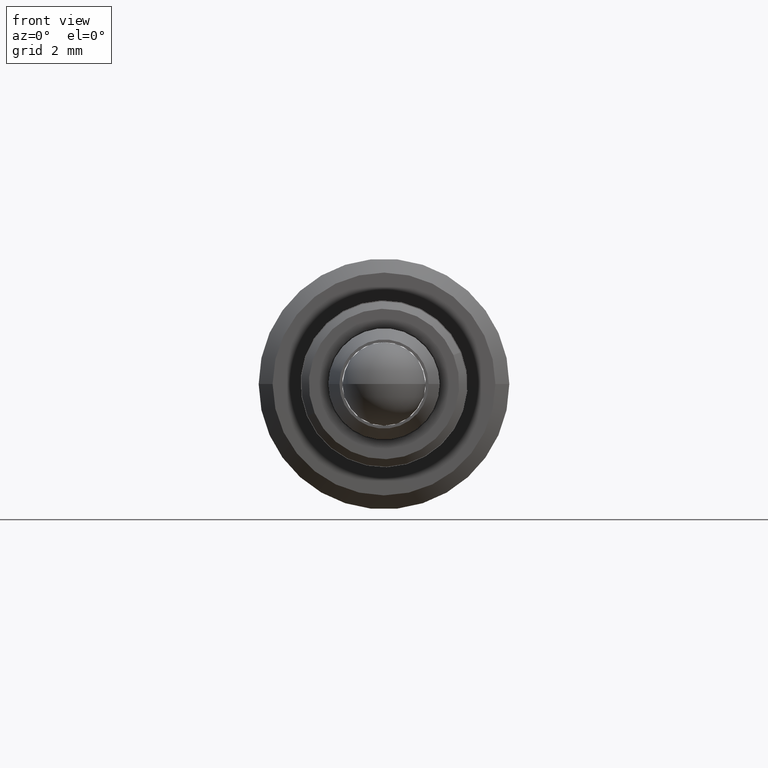
[diagram: clean part render]
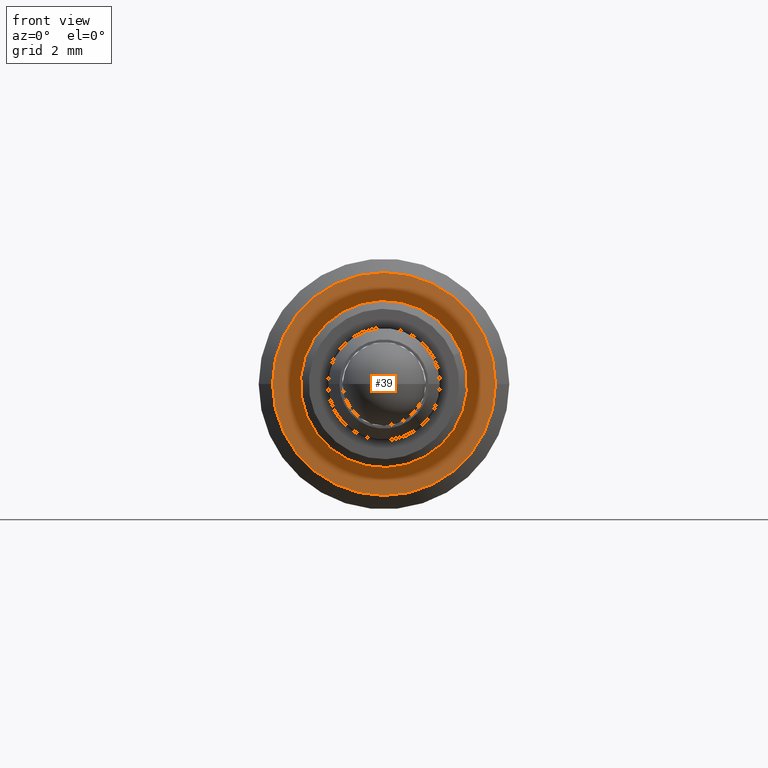
[diagram: same view with one face highlighted and labeled with its STEP entity id]
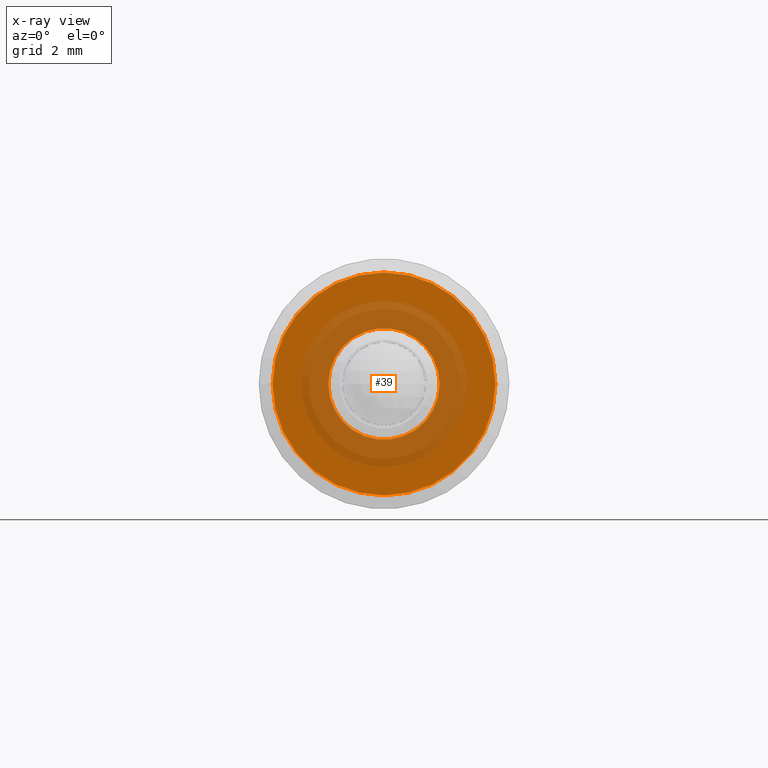
[diagram: x-ray of the same camera — body ghosted, the highlighted face saturated]
A machine part, front view. The second image highlights one B-rep face of the part: STEP entity #39.
The next image is the same camera in x-ray: the body ghosted, the highlighted face saturated — about 40% of this face is hidden behind the body in this view.
In plain terms, the highlighted planar face has unit normal (-0, -1, 0).
Its self-contained STEP definition (entity closure, byte-faithful):
#4 = DIRECTION ( 'NONE',  ( 1.000000000000000000, -1.019221640393047800E-016, 0.0000000000000000000 ) ) ;
#24 = CARTESIAN_POINT ( 'NONE',  ( 4.386313430823045100, 19.63143070247038900, 17.11623035873974200 ) ) ;
#27 = CARTESIAN_POINT ( 'NONE',  ( 12.88631343082304400, 19.63143070247038900, 17.11623035873974200 ) ) ;
#39 = ADVANCED_FACE ( 'NONE', ( #416, #190 ), #67, .T. ) ;
#44 = AXIS2_PLACEMENT_3D ( 'NONE', #83, #241, #508 ) ;
#46 = CIRCLE ( 'NONE', #1028, 2.000000000000000900 ) ;
#67 = PLANE ( 'NONE',  #505 ) ;
#83 = CARTESIAN_POINT ( 'NONE',  ( 8.886313430823047800, 19.63143070247038900, 17.11623035873974200 ) ) ;
#156 = CARTESIAN_POINT ( 'NONE',  ( 6.886313430823046000, 19.63143070247039300, 17.11623035873974200 ) ) ;
#188 = CIRCLE ( 'NONE', #708, 3.999999999999996400 ) ;
#190 = FACE_BOUND ( 'NONE', #1100, .T. ) ;
#217 = VERTEX_POINT ( 'NONE', #156 ) ;
#232 = EDGE_CURVE ( 'NONE', #269, #854, #311, .T. ) ;
#241 = DIRECTION ( 'NONE',  ( -1.019221640393047800E-016, -1.000000000000000000, 0.0000000000000000000 ) ) ;
#251 = ORIENTED_EDGE ( 'NONE', *, *, #657, .T. ) ;
#269 = VERTEX_POINT ( 'NONE', #1020 ) ;
#293 = DIRECTION ( 'NONE',  ( 1.000000000000000000, 0.0000000000000000000, 0.0000000000000000000 ) ) ;
#311 = CIRCLE ( 'NONE', #44, 3.999999999999996400 ) ;
#409 = ORIENTED_EDGE ( 'NONE', *, *, #232, .T. ) ;
#416 = FACE_OUTER_BOUND ( 'NONE', #650, .T. ) ;
#469 = DIRECTION ( 'NONE',  ( 1.019221640393047800E-016, 1.000000000000000000, -0.0000000000000000000 ) ) ;
#505 = AXIS2_PLACEMENT_3D ( 'NONE', #24, #1048, #4 ) ;
#508 = DIRECTION ( 'NONE',  ( 1.000000000000000000, 0.0000000000000000000, 0.0000000000000000000 ) ) ;
#511 = EDGE_CURVE ( 'NONE', #217, #1071, #46, .T. ) ;
#630 = DIRECTION ( 'NONE',  ( -1.000000000000000000, 0.0000000000000000000, 0.0000000000000000000 ) ) ;
#646 = DIRECTION ( 'NONE',  ( 1.019221640393047800E-016, 1.000000000000000000, -0.0000000000000000000 ) ) ;
#650 = EDGE_LOOP ( 'NONE', ( #409, #251 ) ) ;
#657 = EDGE_CURVE ( 'NONE', #854, #269, #188, .T. ) ;
#708 = AXIS2_PLACEMENT_3D ( 'NONE', #1068, #972, #293 ) ;
#724 = AXIS2_PLACEMENT_3D ( 'NONE', #985, #646, #630 ) ;
#738 = ORIENTED_EDGE ( 'NONE', *, *, #511, .T. ) ;
#854 = VERTEX_POINT ( 'NONE', #27 ) ;
#904 = EDGE_CURVE ( 'NONE', #1071, #217, #925, .T. ) ;
#906 = CARTESIAN_POINT ( 'NONE',  ( 10.88631343082305000, 19.63143070247039300, 17.11623035873974200 ) ) ;
#925 = CIRCLE ( 'NONE', #724, 2.000000000000000900 ) ;
#972 = DIRECTION ( 'NONE',  ( -1.019221640393047800E-016, -1.000000000000000000, 0.0000000000000000000 ) ) ;
#976 = CARTESIAN_POINT ( 'NONE',  ( 8.886313430823047800, 19.63143070247039300, 17.11623035873974200 ) ) ;
#985 = CARTESIAN_POINT ( 'NONE',  ( 8.886313430823047800, 19.63143070247039300, 17.11623035873974200 ) ) ;
#1020 = CARTESIAN_POINT ( 'NONE',  ( 4.886313430823050500, 19.63143070247038900, 17.11623035873974200 ) ) ;
#1028 = AXIS2_PLACEMENT_3D ( 'NONE', #976, #469, #1062 ) ;
#1033 = ORIENTED_EDGE ( 'NONE', *, *, #904, .T. ) ;
#1048 = DIRECTION ( 'NONE',  ( -1.019221640393047800E-016, -1.000000000000000000, 0.0000000000000000000 ) ) ;
#1062 = DIRECTION ( 'NONE',  ( -1.000000000000000000, 0.0000000000000000000, 0.0000000000000000000 ) ) ;
#1068 = CARTESIAN_POINT ( 'NONE',  ( 8.886313430823047800, 19.63143070247038900, 17.11623035873974200 ) ) ;
#1071 = VERTEX_POINT ( 'NONE', #906 ) ;
#1100 = EDGE_LOOP ( 'NONE', ( #738, #1033 ) ) ;